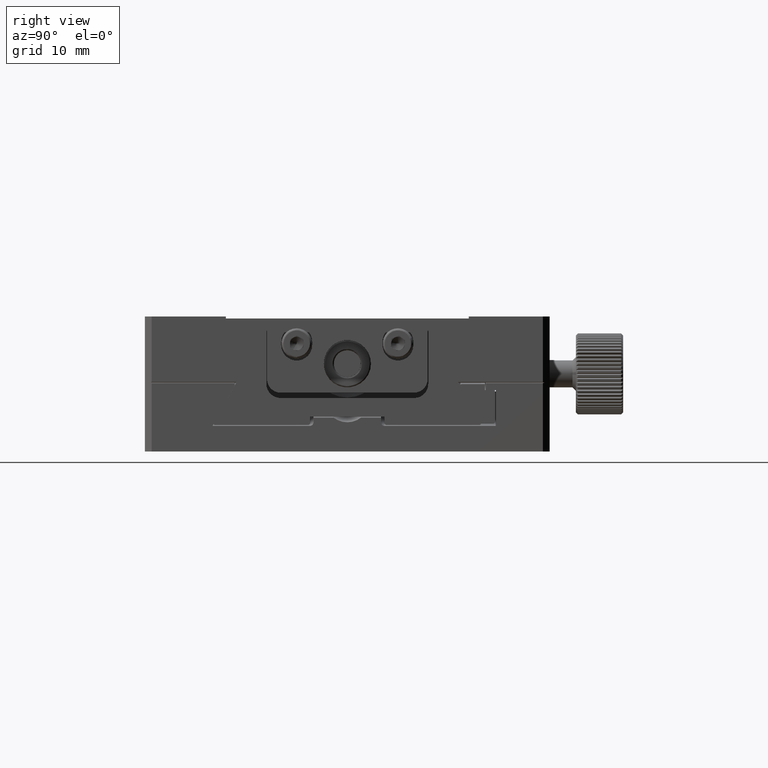
[diagram: clean part render]
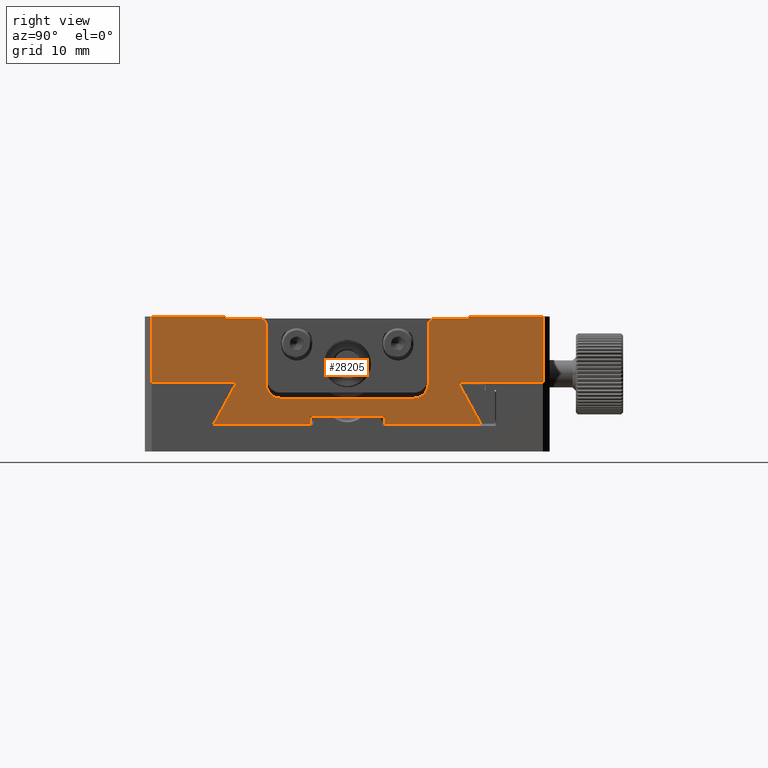
[diagram: same view with one face highlighted and labeled with its STEP entity id]
A machine part, right view. The second image highlights one B-rep face of the part: STEP entity #28205.
In plain terms, the highlighted planar face has unit normal (-1, 0, 0).
Its self-contained STEP definition (entity closure, byte-faithful):
#272 = CARTESIAN_POINT ( 'NONE',  ( 29.99999999999998934, 18.00000000000000355, 100.0000000000000142 ) ) ;
#576 = CARTESIAN_POINT ( 'NONE',  ( 29.99999999999876366, -16.41335654523676268, 90.29693231647209473 ) ) ;
#665 = CARTESIAN_POINT ( 'NONE',  ( 30.00000000000000000, 5.566671702739348859, 84.09229023293701744 ) ) ;
#688 = ORIENTED_EDGE ( 'NONE', *, *, #11871, .F. ) ;
#698 = ORIENTED_EDGE ( 'NONE', *, *, #29443, .F. ) ;
#791 = VERTEX_POINT ( 'NONE', #28750 ) ;
#1548 = CARTESIAN_POINT ( 'NONE',  ( 30.00000000000000000, 19.67749907475930726, 83.95071470809523362 ) ) ;
#1617 = EDGE_CURVE ( 'NONE', #2543, #5177, #7217, .T. ) ;
#1629 = AXIS2_PLACEMENT_3D ( 'NONE', #17406, #23056, #6264 ) ;
#1751 = VECTOR ( 'NONE', #31922, 1000.000000000000000 ) ;
#1802 = VERTEX_POINT ( 'NONE', #272 ) ;
#1891 = VECTOR ( 'NONE', #20872, 1000.000000000000000 ) ;
#2032 = CARTESIAN_POINT ( 'NONE',  ( 30.00000000000000000, -5.499999999999980460, 84.16307088028572991 ) ) ;
#2179 = EDGE_CURVE ( 'NONE', #9054, #791, #13954, .T. ) ;
#2247 = ORIENTED_EDGE ( 'NONE', *, *, #1617, .F. ) ;
#2397 = CARTESIAN_POINT ( 'NONE',  ( 30.00000000000000000, -5.633338381719940280, 84.02150485312652961 ) ) ;
#2543 = VERTEX_POINT ( 'NONE', #19429 ) ;
#2684 = LINE ( 'NONE', #28721, #22896 ) ;
#2867 = CARTESIAN_POINT ( 'NONE',  ( 29.99999999999999645, 5.204170427930421283E-15, 99.70000000000003126 ) ) ;
#3022 = CARTESIAN_POINT ( 'NONE',  ( 30.00000000000000000, -19.77749907475932645, 84.13462406107811375 ) ) ;
#3108 = CARTESIAN_POINT ( 'NONE',  ( 30.00000000000000000, 5.499999999999986677, 84.16307088028571570 ) ) ;
#3176 = DIRECTION ( 'NONE',  ( -0.000000000000000000, -0.000000000000000000, -1.000000000000000000 ) ) ;
#3489 = CARTESIAN_POINT ( 'NONE',  ( 30.00000000000000000, 5.700000000000007283, 83.95071470809523362 ) ) ;
#3840 = ORIENTED_EDGE ( 'NONE', *, *, #36252, .F. ) ;
#3883 = VERTEX_POINT ( 'NONE', #15689 ) ;
#3892 = ORIENTED_EDGE ( 'NONE', *, *, #5973, .F. ) ;
#3940 = VECTOR ( 'NONE', #21360, 1000.000000000000000 ) ;
#4000 = DIRECTION ( 'NONE',  ( 0.000000000000000000, 0.000000000000000000, -1.000000000000000000 ) ) ;
#4261 = EDGE_CURVE ( 'NONE', #21457, #31763, #7700, .T. ) ;
#4559 = VECTOR ( 'NONE', #5844, 1000.000000000000000 ) ;
#4817 = VECTOR ( 'NONE', #22699, 1000.000000000000000 ) ;
#4840 = LINE ( 'NONE', #33332, #9169 ) ;
#4852 = EDGE_CURVE ( 'NONE', #35462, #18720, #13044, .T. ) ;
#4855 = EDGE_CURVE ( 'NONE', #22762, #8977, #8513, .T. ) ;
#4862 = VECTOR ( 'NONE', #35516, 1000.000000000000000 ) ;
#4964 = LINE ( 'NONE', #33278, #10083 ) ;
#5046 = EDGE_CURVE ( 'NONE', #3883, #25867, #29715, .T. ) ;
#5177 = VERTEX_POINT ( 'NONE', #7623 ) ;
#5336 = CARTESIAN_POINT ( 'NONE',  ( 30.00000000000000000, 19.67749907475930726, 83.95071470809523362 ) ) ;
#5727 = VERTEX_POINT ( 'NONE', #21285 ) ;
#5844 = DIRECTION ( 'NONE',  ( -0.000000000000000000, -1.000000000000000000, 0.000000000000000000 ) ) ;
#5859 = EDGE_CURVE ( 'NONE', #15297, #9054, #4840, .T. ) ;
#5973 = EDGE_CURVE ( 'NONE', #1802, #5727, #10136, .T. ) ;
#6101 = CARTESIAN_POINT ( 'NONE',  ( 29.99999999999999645, -18.00000000000000711, 99.70000000000003126 ) ) ;
#6264 = DIRECTION ( 'NONE',  ( 0.000000000000000000, 0.000000000000000000, 1.000000000000000000 ) ) ;
#6487 = VERTEX_POINT ( 'NONE', #10822 ) ;
#6503 = CARTESIAN_POINT ( 'NONE',  ( 30.00000000000000000, -19.74655716681486339, 84.01201828003209471 ) ) ;
#6815 = DIRECTION ( 'NONE',  ( -1.000000000000000000, -0.000000000000000000, -0.000000000000000000 ) ) ;
#7050 = CARTESIAN_POINT ( 'NONE',  ( 30.00000000000001776, -9.899999999999998579, 90.00000000000001421 ) ) ;
#7115 = VECTOR ( 'NONE', #34948, 1000.000000000000000 ) ;
#7211 = EDGE_CURVE ( 'NONE', #35462, #16960, #24815, .T. ) ;
#7217 = LINE ( 'NONE', #21396, #4862 ) ;
#7271 = VECTOR ( 'NONE', #3176, 1000.000000000000000 ) ;
#7320 = CARTESIAN_POINT ( 'NONE',  ( 30.00000000000000000, -5.566671702739337313, 84.09229023293701744 ) ) ;
#7344 = ORIENTED_EDGE ( 'NONE', *, *, #22589, .F. ) ;
#7542 = CARTESIAN_POINT ( 'NONE',  ( 30.00000000000000000, 28.99999999999998579, 90.29693231647455320 ) ) ;
#7616 = CARTESIAN_POINT ( 'NONE',  ( 30.00000000000000000, 5.204170427930421283E-15, 99.70000000000003126 ) ) ;
#7623 = CARTESIAN_POINT ( 'NONE',  ( 30.00000000000000355, -28.99999999999999289, 90.29693231647138418 ) ) ;
#7700 = B_SPLINE_CURVE_WITH_KNOTS ( 'NONE', 3,
 ( #1548, #27931, #25094, #13073 ),
 .UNSPECIFIED., .F., .F.,
 ( 4, 4 ),
 ( 0.000000000000000000, 0.0001849423036829464712 ),
 .UNSPECIFIED. ) ;
#7778 = DIRECTION ( 'NONE',  ( 1.000000000000000000, 0.000000000000000000, 0.000000000000000000 ) ) ;
#7999 = LINE ( 'NONE', #17254, #32071 ) ;
#8054 = VECTOR ( 'NONE', #35776, 1000.000000000000000 ) ;
#8325 = CARTESIAN_POINT ( 'NONE',  ( 30.00000000000001776, 9.899999999999998579, 90.00000000000001421 ) ) ;
#8387 = CARTESIAN_POINT ( 'NONE',  ( 29.99999996457859197, 16.41335656139803589, 90.29693229874337135 ) ) ;
#8513 = B_SPLINE_CURVE_WITH_KNOTS ( 'NONE', 3,
 ( #11795, #20670, #6503, #26124 ),
 .UNSPECIFIED., .F., .F.,
 ( 4, 4 ),
 ( 0.000000000000000000, 0.0001896748618196892353 ),
 .UNSPECIFIED. ) ;
#8728 = CARTESIAN_POINT ( 'NONE',  ( 30.00000000000000000, -29.99999999999998934, 90.29693231647453899 ) ) ;
#8977 = VERTEX_POINT ( 'NONE', #18226 ) ;
#8980 = EDGE_CURVE ( 'NONE', #32701, #31763, #22060, .T. ) ;
#9054 = VERTEX_POINT ( 'NONE', #35934 ) ;
#9169 = VECTOR ( 'NONE', #27844, 1000.000000000000000 ) ;
#9207 = ORIENTED_EDGE ( 'NONE', *, *, #14727, .F. ) ;
#9400 = LINE ( 'NONE', #20918, #7271 ) ;
#9574 = ORIENTED_EDGE ( 'NONE', *, *, #12908, .F. ) ;
#9683 = DIRECTION ( 'NONE',  ( 0.000000000000000000, 0.000000000000000000, 1.000000000000000000 ) ) ;
#10083 = VECTOR ( 'NONE', #33820, 1000.000000000000000 ) ;
#10136 = LINE ( 'NONE', #27298, #29097 ) ;
#10300 = EDGE_CURVE ( 'NONE', #31292, #6487, #9400, .T. ) ;
#10408 = CARTESIAN_POINT ( 'NONE',  ( 30.00000000000000711, 13.00000000000000355, 99.70000000000003126 ) ) ;
#10615 = DIRECTION ( 'NONE',  ( 0.000000000000000000, 0.000000000000000000, 1.000000000000000000 ) ) ;
#10748 = CARTESIAN_POINT ( 'NONE',  ( 30.00000000000000711, -9.899999999999998579, 87.90000000000000568 ) ) ;
#10822 = CARTESIAN_POINT ( 'NONE',  ( 30.00000000000000711, -12.00000000000000000, 90.00000000000001421 ) ) ;
#11027 = ORIENTED_EDGE ( 'NONE', *, *, #5859, .F. ) ;
#11262 = LINE ( 'NONE', #28625, #23803 ) ;
#11388 = EDGE_CURVE ( 'NONE', #22762, #2543, #26672, .T. ) ;
#11538 = ORIENTED_EDGE ( 'NONE', *, *, #2179, .F. ) ;
#11562 = B_SPLINE_CURVE_WITH_KNOTS ( 'NONE', 3,
 ( #16581, #2397, #7320, #2032 ),
 .UNSPECIFIED., .F., .F.,
 ( 4, 4 ),
 ( 8.673617379884035472E-19, 0.0002917107194934854446 ),
 .UNSPECIFIED. ) ;
#11795 = CARTESIAN_POINT ( 'NONE',  ( 30.00000000000000000, -19.77749907475932645, 84.13462406107811375 ) ) ;
#11871 = EDGE_CURVE ( 'NONE', #25867, #27910, #32548, .T. ) ;
#12131 = CARTESIAN_POINT ( 'NONE',  ( 30.00000000000000000, 5.500000000000002665, 85.17094575029678083 ) ) ;
#12207 = ORIENTED_EDGE ( 'NONE', *, *, #5046, .F. ) ;
#12249 = VERTEX_POINT ( 'NONE', #7542 ) ;
#12295 = CIRCLE ( 'NONE', #30934, 2.100000000000004530 ) ;
#12803 = ORIENTED_EDGE ( 'NONE', *, *, #10300, .F. ) ;
#12908 = EDGE_CURVE ( 'NONE', #19992, #8977, #7999, .T. ) ;
#13044 = B_SPLINE_CURVE_WITH_KNOTS ( 'NONE', 3,
 ( #3108, #665, #32532, #3489 ),
 .UNSPECIFIED., .F., .F.,
 ( 4, 4 ),
 ( 1.734723475976807094E-18, 0.0002917107194934717837 ),
 .UNSPECIFIED. ) ;
#13073 = CARTESIAN_POINT ( 'NONE',  ( 30.00000000000000000, 19.80429399400220802, 84.08535015716323358 ) ) ;
#13643 = FACE_OUTER_BOUND ( 'NONE', #17038, .T. ) ;
#13822 = CARTESIAN_POINT ( 'NONE',  ( 30.00000000000000000, -29.99999999999998934, 82.00000000000000000 ) ) ;
#13954 = CIRCLE ( 'NONE', #18157, 2.100000000000004530 ) ;
#14313 = DIRECTION ( 'NONE',  ( 0.000000000000000000, 0.000000000000000000, 1.000000000000000000 ) ) ;
#14566 = CARTESIAN_POINT ( 'NONE',  ( 30.00000000000000000, -18.65945888465410718, 86.19055055044324831 ) ) ;
#14607 = VECTOR ( 'NONE', #15399, 1000.000000000000000 ) ;
#14727 = EDGE_CURVE ( 'NONE', #6487, #15297, #12295, .T. ) ;
#14745 = CARTESIAN_POINT ( 'NONE',  ( 30.00000000000000000, -18.00000000000001066, 100.0000000000000142 ) ) ;
#14836 = CARTESIAN_POINT ( 'NONE',  ( 29.99999999999999645, 18.00000000000000355, 99.70000000000003126 ) ) ;
#15055 = VECTOR ( 'NONE', #26825, 1000.000000000000000 ) ;
#15056 = ORIENTED_EDGE ( 'NONE', *, *, #24344, .F. ) ;
#15082 = CARTESIAN_POINT ( 'NONE',  ( 30.00000000000000000, -5.499999999999998224, 85.17094575029678083 ) ) ;
#15210 = LINE ( 'NONE', #28963, #27639 ) ;
#15215 = CARTESIAN_POINT ( 'NONE',  ( 30.00000000000000000, 17.54685167883548047, 88.22814232146315305 ) ) ;
#15297 = VERTEX_POINT ( 'NONE', #10748 ) ;
#15399 = DIRECTION ( 'NONE',  ( 0.000000000000000000, 1.000000000000000000, -0.000000000000000000 ) ) ;
#15689 = CARTESIAN_POINT ( 'NONE',  ( 30.00000000000000000, -28.99999999999999289, 100.0000000000000142 ) ) ;
#16581 = CARTESIAN_POINT ( 'NONE',  ( 30.00000000000000000, -5.699999999999994849, 83.95071470809523362 ) ) ;
#16662 = DIRECTION ( 'NONE',  ( 0.000000000000000000, 0.000000000000000000, -1.000000000000000000 ) ) ;
#16960 = VERTEX_POINT ( 'NONE', #12131 ) ;
#17038 = EDGE_LOOP ( 'NONE', ( #25419, #7344, #688, #12207, #3840, #2247, #33334, #20891, #9574, #32653, #698, #21654, #28139, #29839, #34295, #20848, #32020, #30562, #15056, #3892, #33942, #31029, #29623, #23042, #11538, #11027, #9207, #12803 ) ) ;
#17254 = CARTESIAN_POINT ( 'NONE',  ( 30.00000000000000000, -29.99999999999998934, 83.95071470809523362 ) ) ;
#17321 = CARTESIAN_POINT ( 'NONE',  ( 30.00000000000000000, 5.499999999999986677, 84.16307088028571570 ) ) ;
#17406 = CARTESIAN_POINT ( 'NONE',  ( 30.00000000000000000, -13.00000000000000355, 98.70000000000001705 ) ) ;
#17413 = DIRECTION ( 'NONE',  ( 0.000000000000000000, 0.000000000000000000, 1.000000000000000000 ) ) ;
#17744 = LINE ( 'NONE', #34318, #4559 ) ;
#17805 = LINE ( 'NONE', #2867, #7115 ) ;
#18157 = AXIS2_PLACEMENT_3D ( 'NONE', #8325, #7778, #16662 ) ;
#18226 = CARTESIAN_POINT ( 'NONE',  ( 30.00000000000000000, -19.73108891324556424, 83.95071470809523362 ) ) ;
#18720 = VERTEX_POINT ( 'NONE', #32301 ) ;
#18948 = EDGE_CURVE ( 'NONE', #21457, #18720, #17744, .T. ) ;
#19040 = CARTESIAN_POINT ( 'NONE',  ( 30.00000000000000000, -13.00000000000000355, 99.70000000000003126 ) ) ;
#19429 = CARTESIAN_POINT ( 'NONE',  ( 29.99999999999876366, -16.41335654523676268, 90.29693231647209473 ) ) ;
#19545 = CARTESIAN_POINT ( 'NONE',  ( 30.00000000000000000, -12.00000000000000000, 98.70000000000001705 ) ) ;
#19818 = CARTESIAN_POINT ( 'NONE',  ( 30.00000000000000000, 19.80429399400220802, 84.08535015716323358 ) ) ;
#19992 = VERTEX_POINT ( 'NONE', #25167 ) ;
#20171 = VERTEX_POINT ( 'NONE', #14836 ) ;
#20512 = EDGE_CURVE ( 'NONE', #35397, #31292, #22117, .T. ) ;
#20670 = CARTESIAN_POINT ( 'NONE',  ( 30.00000000000000000, -19.76202722418356217, 84.07332139685817651 ) ) ;
#20848 = ORIENTED_EDGE ( 'NONE', *, *, #4261, .T. ) ;
#20856 = DIRECTION ( 'NONE',  ( -0.000000000000000000, -1.000000000000000000, 0.000000000000000000 ) ) ;
#20872 = DIRECTION ( 'NONE',  ( -0.000000000000000000, -0.000000000000000000, -1.000000000000000000 ) ) ;
#20891 = ORIENTED_EDGE ( 'NONE', *, *, #4855, .T. ) ;
#20918 = CARTESIAN_POINT ( 'NONE',  ( 30.00000000000000000, -12.00000000000000000, 82.00000000000000000 ) ) ;
#21167 = CARTESIAN_POINT ( 'NONE',  ( 30.00000000000001776, 13.00000000000000355, 98.70000000000001705 ) ) ;
#21285 = CARTESIAN_POINT ( 'NONE',  ( 30.00000000000000000, 28.99999999999998579, 100.0000000000000142 ) ) ;
#21345 = EDGE_CURVE ( 'NONE', #791, #28569, #4964, .T. ) ;
#21360 = DIRECTION ( 'NONE',  ( -0.000000000000000000, 0.000000000000000000, -1.000000000000000000 ) ) ;
#21396 = CARTESIAN_POINT ( 'NONE',  ( 30.00000000000000000, -29.99999999999998934, 90.29693231646972151 ) ) ;
#21454 = VERTEX_POINT ( 'NONE', #23440 ) ;
#21457 = VERTEX_POINT ( 'NONE', #5336 ) ;
#21652 = DIRECTION ( 'NONE',  ( 0.000000000000000000, 1.000000000000000000, -0.000000000000000000 ) ) ;
#21654 = ORIENTED_EDGE ( 'NONE', *, *, #23485, .F. ) ;
#21912 = CARTESIAN_POINT ( 'NONE',  ( 30.00000000000000000, -19.77749907475932645, 84.13462406107811375 ) ) ;
#22060 = B_SPLINE_CURVE_WITH_KNOTS ( 'NONE', 3,
 ( #35746, #15215, #26880, #32923 ),
 .UNSPECIFIED., .F., .F.,
 ( 4, 4 ),
 ( 0.000000000000000000, 0.007076878481644750113 ),
 .UNSPECIFIED. ) ;
#22117 = CIRCLE ( 'NONE', #1629, 1.000000000000000888 ) ;
#22342 = DIRECTION ( 'NONE',  ( -0.000000000000000000, -1.000000000000000000, 0.000000000000000000 ) ) ;
#22589 = EDGE_CURVE ( 'NONE', #27910, #35397, #17805, .T. ) ;
#22699 = DIRECTION ( 'NONE',  ( -0.000000000000000000, 1.000000000000000000, 0.000000000000000000 ) ) ;
#22726 = VERTEX_POINT ( 'NONE', #10408 ) ;
#22762 = VERTEX_POINT ( 'NONE', #21912 ) ;
#22896 = VECTOR ( 'NONE', #17413, 1000.000000000000000 ) ;
#23042 = ORIENTED_EDGE ( 'NONE', *, *, #21345, .F. ) ;
#23056 = DIRECTION ( 'NONE',  ( -1.000000000000000000, 0.000000000000000000, 0.000000000000000000 ) ) ;
#23127 = CARTESIAN_POINT ( 'NONE',  ( 29.99999999999999645, -18.00000000000001066, 99.70000000000003126 ) ) ;
#23156 = AXIS2_PLACEMENT_3D ( 'NONE', #13822, #36449, #10615 ) ;
#23440 = CARTESIAN_POINT ( 'NONE',  ( 30.00000000000000000, -5.499999999999980460, 84.16307088028572991 ) ) ;
#23485 = EDGE_CURVE ( 'NONE', #16960, #27357, #15210, .T. ) ;
#23803 = VECTOR ( 'NONE', #14313, 1000.000000000000000 ) ;
#23891 = EDGE_CURVE ( 'NONE', #12249, #32701, #28919, .T. ) ;
#24344 = EDGE_CURVE ( 'NONE', #5727, #12249, #35128, .T. ) ;
#24463 = CARTESIAN_POINT ( 'NONE',  ( 30.00000000000000000, 5.500000000000003553, -89.14999999999997726 ) ) ;
#24815 = LINE ( 'NONE', #24463, #8054 ) ;
#25094 = CARTESIAN_POINT ( 'NONE',  ( 30.00000000000000000, 19.76202699309790489, 84.04047358395953893 ) ) ;
#25113 = PLANE ( 'NONE',  #23156 ) ;
#25167 = CARTESIAN_POINT ( 'NONE',  ( 30.00000000000000000, -5.699999999999994849, 83.95071470809523362 ) ) ;
#25419 = ORIENTED_EDGE ( 'NONE', *, *, #20512, .F. ) ;
#25867 = VERTEX_POINT ( 'NONE', #14745 ) ;
#26124 = CARTESIAN_POINT ( 'NONE',  ( 30.00000000000000000, -19.73108891324556424, 83.95071470809523362 ) ) ;
#26672 = B_SPLINE_CURVE_WITH_KNOTS ( 'NONE', 3,
 ( #3022, #14566, #26967, #576 ),
 .UNSPECIFIED., .F., .F.,
 ( 4, 4 ),
 ( 0.000000000000000000, 0.007020790410875343140 ),
 .UNSPECIFIED. ) ;
#26825 = DIRECTION ( 'NONE',  ( -0.000000000000000000, -0.000000000000000000, -1.000000000000000000 ) ) ;
#26849 = DIRECTION ( 'NONE',  ( 1.000000000000000000, -0.000000000000000000, -0.000000000000000000 ) ) ;
#26880 = CARTESIAN_POINT ( 'NONE',  ( 30.00000000000000000, 18.67737942125310369, 86.15773246408058128 ) ) ;
#26967 = CARTESIAN_POINT ( 'NONE',  ( 30.00000000000000000, -17.53786807530947911, 88.24453867698991871 ) ) ;
#26977 = CARTESIAN_POINT ( 'NONE',  ( 30.00000000000000711, 12.00000000000000000, 98.70000000000001705 ) ) ;
#27179 = CARTESIAN_POINT ( 'NONE',  ( 30.00000000000000000, -5.499999999999997335, -89.14999999999997726 ) ) ;
#27298 = CARTESIAN_POINT ( 'NONE',  ( 30.00000000000000000, -29.99999999999998934, 100.0000000000000000 ) ) ;
#27357 = VERTEX_POINT ( 'NONE', #15082 ) ;
#27639 = VECTOR ( 'NONE', #20856, 1000.000000000000000 ) ;
#27844 = DIRECTION ( 'NONE',  ( 0.000000000000000000, 1.000000000000000000, -0.000000000000000000 ) ) ;
#27910 = VERTEX_POINT ( 'NONE', #6101 ) ;
#27931 = CARTESIAN_POINT ( 'NONE',  ( 30.00000000000000000, 19.71976201687317243, 83.99559510372439775 ) ) ;
#28139 = ORIENTED_EDGE ( 'NONE', *, *, #7211, .F. ) ;
#28205 = ADVANCED_FACE ( 'NONE', ( #13643 ), #25113, .F. ) ;
#28569 = VERTEX_POINT ( 'NONE', #26977 ) ;
#28625 = CARTESIAN_POINT ( 'NONE',  ( 29.99999999999998934, 18.00000000000000355, 99.70000000000003126 ) ) ;
#28721 = CARTESIAN_POINT ( 'NONE',  ( 30.00000000000000000, -28.99999999999999289, 82.00000000000000000 ) ) ;
#28750 = CARTESIAN_POINT ( 'NONE',  ( 30.00000000000000711, 12.00000000000000000, 90.00000000000001421 ) ) ;
#28919 = LINE ( 'NONE', #8728, #1751 ) ;
#28963 = CARTESIAN_POINT ( 'NONE',  ( 30.00000000000000000, -29.99999999999998934, 85.17094575029676662 ) ) ;
#29097 = VECTOR ( 'NONE', #21652, 1000.000000000000000 ) ;
#29294 = CARTESIAN_POINT ( 'NONE',  ( 30.00000000000000000, 28.99999999999998224, 82.00000000000000000 ) ) ;
#29443 = EDGE_CURVE ( 'NONE', #27357, #21454, #30022, .T. ) ;
#29623 = ORIENTED_EDGE ( 'NONE', *, *, #30569, .F. ) ;
#29715 = LINE ( 'NONE', #36289, #14607 ) ;
#29815 = AXIS2_PLACEMENT_3D ( 'NONE', #21167, #6815, #4000 ) ;
#29839 = ORIENTED_EDGE ( 'NONE', *, *, #4852, .T. ) ;
#30022 = LINE ( 'NONE', #27179, #3940 ) ;
#30562 = ORIENTED_EDGE ( 'NONE', *, *, #23891, .F. ) ;
#30569 = EDGE_CURVE ( 'NONE', #28569, #22726, #32798, .T. ) ;
#30934 = AXIS2_PLACEMENT_3D ( 'NONE', #7050, #26849, #9683 ) ;
#31023 = EDGE_CURVE ( 'NONE', #20171, #1802, #11262, .T. ) ;
#31029 = ORIENTED_EDGE ( 'NONE', *, *, #35910, .F. ) ;
#31292 = VERTEX_POINT ( 'NONE', #19545 ) ;
#31763 = VERTEX_POINT ( 'NONE', #19818 ) ;
#31922 = DIRECTION ( 'NONE',  ( -0.000000000000000000, -1.000000000000000000, 0.000000000000000000 ) ) ;
#32020 = ORIENTED_EDGE ( 'NONE', *, *, #8980, .F. ) ;
#32071 = VECTOR ( 'NONE', #22342, 1000.000000000000000 ) ;
#32301 = CARTESIAN_POINT ( 'NONE',  ( 30.00000000000000000, 5.700000000000007283, 83.95071470809523362 ) ) ;
#32532 = CARTESIAN_POINT ( 'NONE',  ( 30.00000000000000000, 5.633338381719948273, 84.02150485312652961 ) ) ;
#32548 = LINE ( 'NONE', #23127, #1891 ) ;
#32653 = ORIENTED_EDGE ( 'NONE', *, *, #35382, .T. ) ;
#32701 = VERTEX_POINT ( 'NONE', #8387 ) ;
#32798 = CIRCLE ( 'NONE', #29815, 1.000000000000000888 ) ;
#32923 = CARTESIAN_POINT ( 'NONE',  ( 30.00000000000000000, 19.80429399400220802, 84.08535015716323358 ) ) ;
#33278 = CARTESIAN_POINT ( 'NONE',  ( 30.00000000000000000, 12.00000000000000000, 82.00000000000000000 ) ) ;
#33332 = CARTESIAN_POINT ( 'NONE',  ( 30.00000000000000000, -29.99999999999998934, 87.90000000000000568 ) ) ;
#33334 = ORIENTED_EDGE ( 'NONE', *, *, #11388, .F. ) ;
#33464 = LINE ( 'NONE', #7616, #4817 ) ;
#33820 = DIRECTION ( 'NONE',  ( 0.000000000000000000, 0.000000000000000000, 1.000000000000000000 ) ) ;
#33942 = ORIENTED_EDGE ( 'NONE', *, *, #31023, .F. ) ;
#34295 = ORIENTED_EDGE ( 'NONE', *, *, #18948, .F. ) ;
#34318 = CARTESIAN_POINT ( 'NONE',  ( 30.00000000000000000, -29.99999999999998934, 83.95071470809523362 ) ) ;
#34948 = DIRECTION ( 'NONE',  ( -0.000000000000000000, 1.000000000000000000, 0.000000000000000000 ) ) ;
#35128 = LINE ( 'NONE', #29294, #15055 ) ;
#35382 = EDGE_CURVE ( 'NONE', #19992, #21454, #11562, .T. ) ;
#35397 = VERTEX_POINT ( 'NONE', #19040 ) ;
#35462 = VERTEX_POINT ( 'NONE', #17321 ) ;
#35516 = DIRECTION ( 'NONE',  ( -0.000000000000000000, -1.000000000000000000, 0.000000000000000000 ) ) ;
#35746 = CARTESIAN_POINT ( 'NONE',  ( 29.99999996457859197, 16.41335656139803589, 90.29693229874337135 ) ) ;
#35776 = DIRECTION ( 'NONE',  ( -0.000000000000000000, 0.000000000000000000, 1.000000000000000000 ) ) ;
#35910 = EDGE_CURVE ( 'NONE', #22726, #20171, #33464, .T. ) ;
#35934 = CARTESIAN_POINT ( 'NONE',  ( 30.00000000000000711, 9.899999999999998579, 87.90000000000000568 ) ) ;
#36252 = EDGE_CURVE ( 'NONE', #5177, #3883, #2684, .T. ) ;
#36289 = CARTESIAN_POINT ( 'NONE',  ( 30.00000000000000000, -29.99999999999998934, 100.0000000000000000 ) ) ;
#36449 = DIRECTION ( 'NONE',  ( -1.000000000000000000, 0.000000000000000000, 0.000000000000000000 ) ) ;